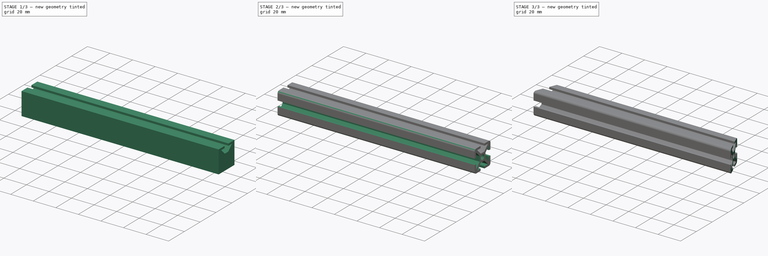
[diagram: build sequence overview — one tinted view per stage of 3, left to right]
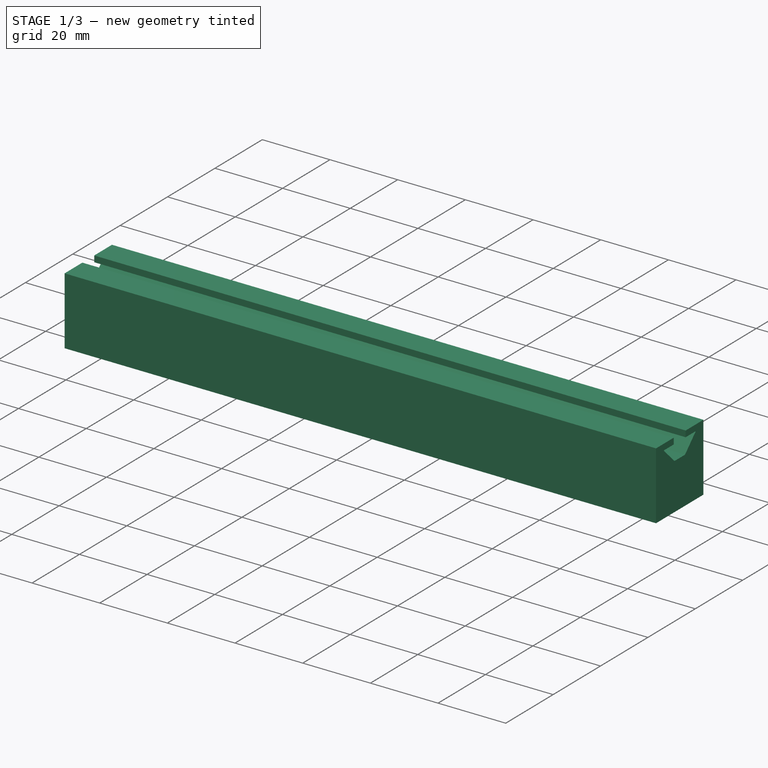
[diagram: stage 1 of 3 — iso view after this stage's code; geometry added in this stage tinted green]
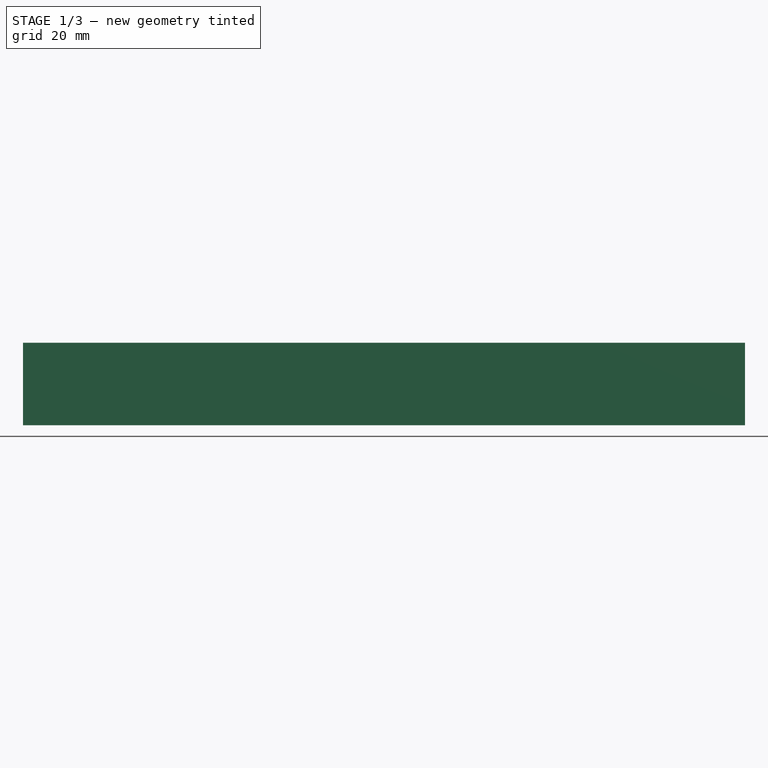
[diagram: stage 1 of 3 — front view after this stage's code; geometry added in this stage tinted green]
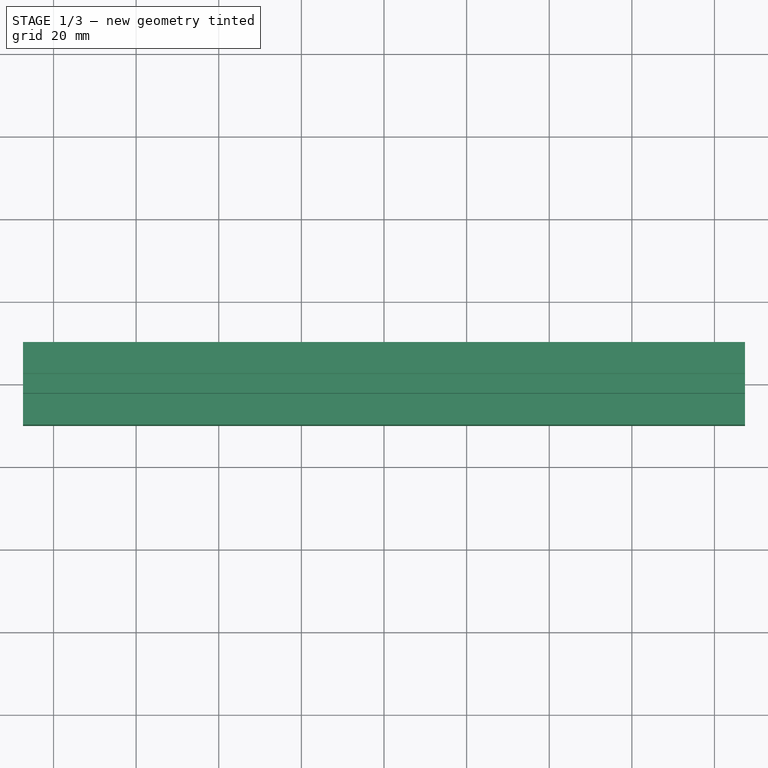
[diagram: stage 1 of 3 — top view after this stage's code; geometry added in this stage tinted green]
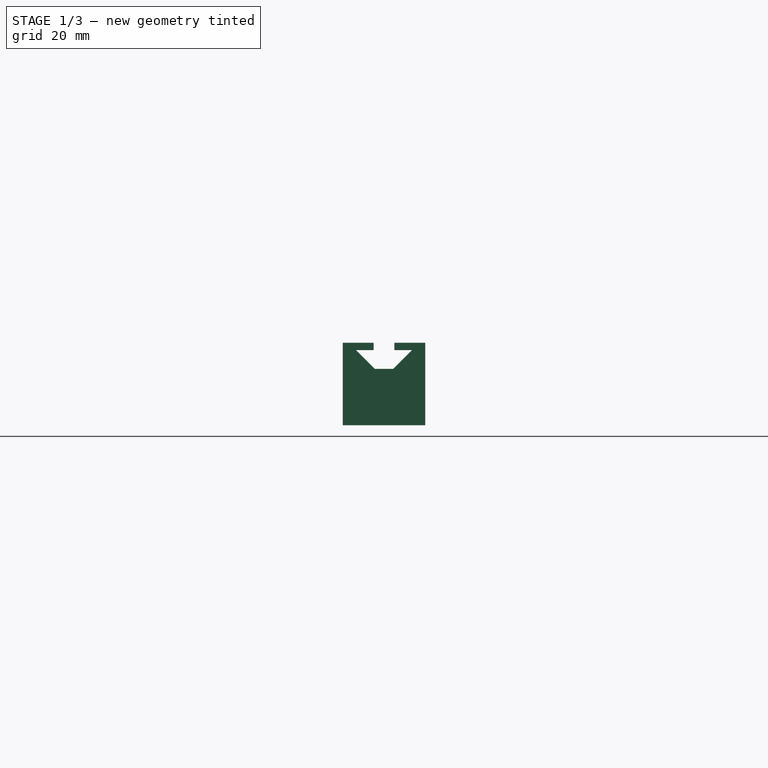
[diagram: stage 1 of 3 — right view after this stage's code; geometry added in this stage tinted green]
FCSTD DOCUMENT  (FreeCAD 1.0R39109 (Git))
Label: OCT-FREXT-LA
License: All rights reserved
LicenseURL: https://en.wikipedia.org/wiki/All_rights_reserved
objects: Sketcher::SketchObject×4, PartDesign::Plane×4, PartDesign::Pocket×3, PartDesign::Line×3, PartDesign::Point×3, PartDesign::Fillet×2, App::Link×1, PartDesign::Pad×1, PartDesign::PolarPattern×1, PartDesign::Body×1
note: 39 computed .brp shape members not serialized (recipe doc carries the construction recipe); baked Part::Feature solids carry a one-line shape summary decoded from their .brp
EXTERNAL_REF file=../master.FCStd obj=Spreadsheet

FEATURE [App::Link] Link  label="dims"
  LinkedObject = -> <external ../master.FCStd>#Spreadsheet
FEATURE [Sketcher::SketchObject] Sketch
  ArcFitTolerance = 1e-06
  AttachmentSupport = -> [YZ_Plane]
  FullyConstrained = true
  MakeInternals = false
  MapMode = 5
  Placement = pos=(0,0,0) rot=(0.57735,0.57735,0.57735;2.0944rad)
  sketch-geometry (5):
    g0: LineSegment StartX=10 StartY=-10 StartZ=0 EndX=10 EndY=10 EndZ=0
    g1: LineSegment StartX=10 StartY=10 StartZ=0 EndX=-10 EndY=10 EndZ=0
    g2: LineSegment StartX=-10 StartY=10 StartZ=0 EndX=-10 EndY=-10 EndZ=0
    g3: LineSegment StartX=-10 StartY=-10 StartZ=0 EndX=10 EndY=-10 EndZ=0
    g4: GeomPoint [constr] X=1e-16 Y=0 Z=0
  constraints (12):
    c: Coincident(g0,g1)
    c: Coincident(g1,g2)
    c: Coincident(g2,g3)
    c: Coincident(g3,g0)
    c: Vertical(g0)
    c: Vertical(g2)
    c: Horizontal(g1)
    c: Horizontal(g3)
    c: Symmetric(g2,g0,g4)
    c: Coincident(g4,g-1)
    c: Equal(g1,g2)
    c: DistanceX(g1,g1) = 20
FEATURE [PartDesign::Pad] Pad
  Direction = (1,0,0)
  Length = 174.798
  Length2 = 10
  Midplane = true
  Placement = pos=(0,0,0) rot=(1,1,1;2.0944rad)
  Profile = -> Sketch
  ReferenceAxis = -> Sketch [N_Axis]
  Refine = true
  Suppressed = false
  Type = 0
  expr: Length = <<dims>>.opFurnace
FEATURE [Sketcher::SketchObject] Sketch001
  ArcFitTolerance = 1e-06
  AttachmentSupport = -> [YZ_Plane]
  FullyConstrained = true
  MakeInternals = false
  MapMode = 5
  Placement = pos=(0,0,0) rot=(0.57735,0.57735,0.57735;2.0944rad)
  sketch-geometry (14):
    g0: LineSegment [constr] StartX=10 StartY=-10 StartZ=0 EndX=10 EndY=10 EndZ=0
    g1: LineSegment [constr] StartX=10 StartY=10 StartZ=0 EndX=-10 EndY=10 EndZ=0
    g2: LineSegment [constr] StartX=-10 StartY=10 StartZ=0 EndX=-10 EndY=-10 EndZ=0
    g3: LineSegment [constr] StartX=-10 StartY=-10 StartZ=0 EndX=10 EndY=-10 EndZ=0
    g4: GeomPoint [constr] X=0 Y=0 Z=0
    g5: LineSegment StartX=-2.5 StartY=10 StartZ=0 EndX=2.5 EndY=10 EndZ=0
    g6: LineSegment StartX=2.5 StartY=10 StartZ=0 EndX=2.5 EndY=8.2 EndZ=0
    g7: LineSegment StartX=2.5 StartY=8.2 StartZ=0 EndX=6.78579 EndY=8.2 EndZ=0
    g8: LineSegment StartX=6.78579 StartY=8.2 StartZ=0 EndX=2.23579 EndY=3.65 EndZ=0
    g9: LineSegment StartX=2.23579 StartY=3.65 StartZ=0 EndX=-2.23579 EndY=3.65 EndZ=0
    g10: LineSegment StartX=-2.23579 StartY=3.65 StartZ=0 EndX=-6.78579 EndY=8.2 EndZ=0
    g11: LineSegment StartX=-6.78579 StartY=8.2 StartZ=0 EndX=-2.5 EndY=8.2 EndZ=0
    g12: LineSegment StartX=-2.5 StartY=8.2 StartZ=0 EndX=-2.5 EndY=10 EndZ=0
    g13: LineSegment [constr] StartX=0 StartY=0 StartZ=0 EndX=10 EndY=10 EndZ=0
  constraints (37):
    c: Coincident(g0,g1)
    c: Coincident(g1,g2)
    c: Coincident(g2,g3)
    c: Coincident(g3,g0)
    c: Vertical(g0)
    c: Vertical(g2)
    c: Horizontal(g3)
    c: Symmetric(g2,g0,g4)
    c: Coincident(g4,g-1)
    c: Equal(g1,g2)
    c: DistanceX(g1,g1) = 20
    c: Coincident(g5,g6)
    c: Vertical(g6)
    c: Coincident(g6,g7)
    c: Horizontal(g7)
    c: Coincident(g7,g8)
    c: Coincident(g8,g9)
    c: Coincident(g9,g10)
    c: Coincident(g10,g11)
    c: Coincident(g11,g12)
    c: Coincident(g12,g5)
    c: PointOnObject(g5,g1)
    c: Symmetric(g5,g5,g-2)
    c: Vertical(g12)
    c: Horizontal(g11)
    c: Equal(g12,g6)
    c: Equal(g11,g7)
    c: Equal(g8,g10)
    c: Horizontal(g9)
    c: DistanceX(g5,g5) = 5
    c: DistanceY(g9,g5) = 6.35
    c: Angle(g10,g11) = 0.785398
    c: Coincident(g13,g4)
    c: Coincident(g13,g0)
    c: Distance(g7,g13) = 1
    c: Horizontal(g1)
    c: DistanceY(g12,g12) = 1.8
FEATURE [PartDesign::Pocket] Pocket
  BaseFeature = -> Pad
  Direction = (-1,0,0)
  Length = 5
  Length2 = 5
  Midplane = true
  Placement = pos=(0,0,0) rot=(1,1,1;2.0944rad)
  Profile = -> Sketch001
  ReferenceAxis = -> Sketch001 [N_Axis]
  Refine = true
  Suppressed = false
  Type = 1
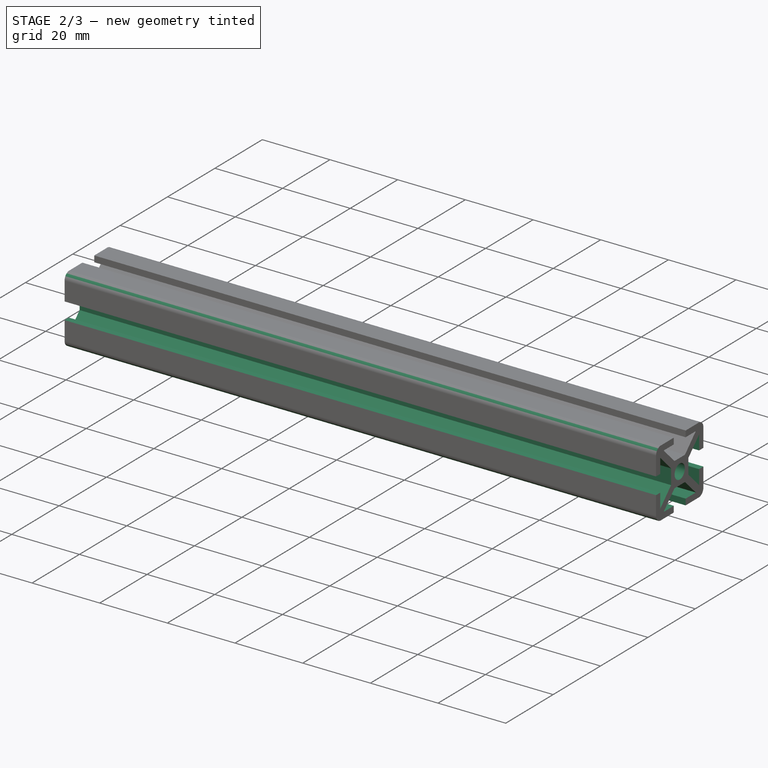
[diagram: stage 2 of 3 — iso view after this stage's code; geometry added in this stage tinted green]
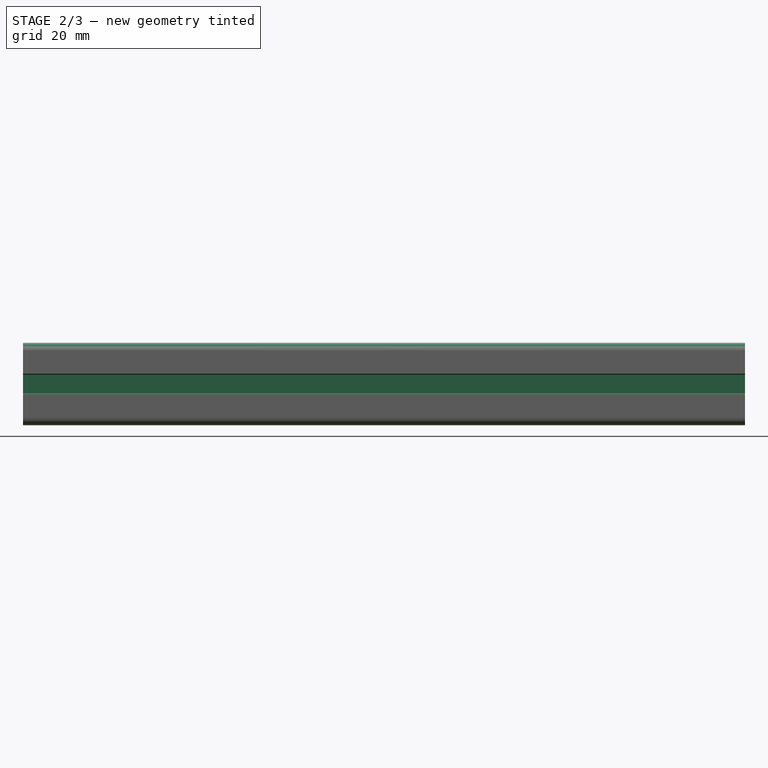
[diagram: stage 2 of 3 — front view after this stage's code; geometry added in this stage tinted green]
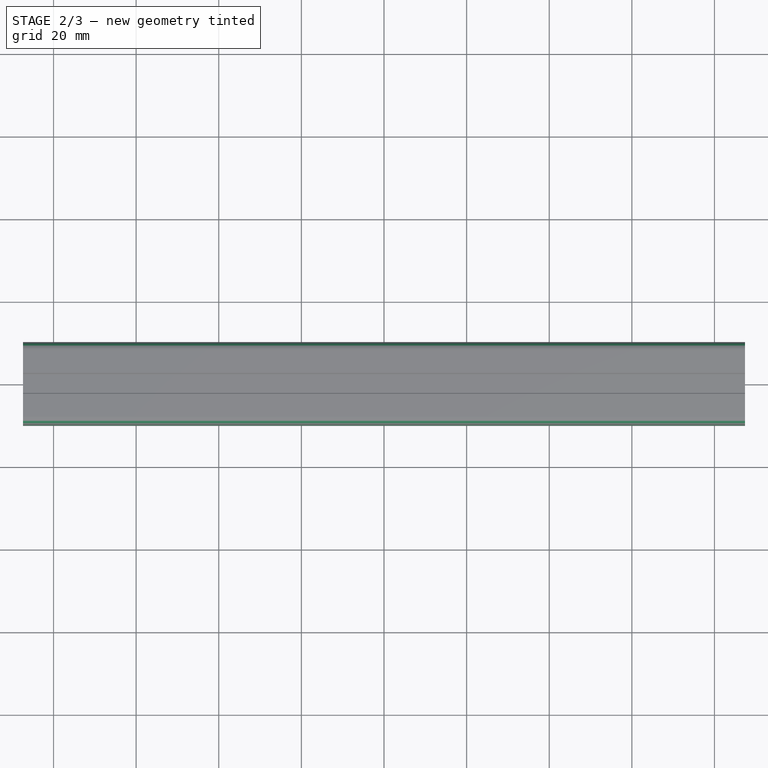
[diagram: stage 2 of 3 — top view after this stage's code; geometry added in this stage tinted green]
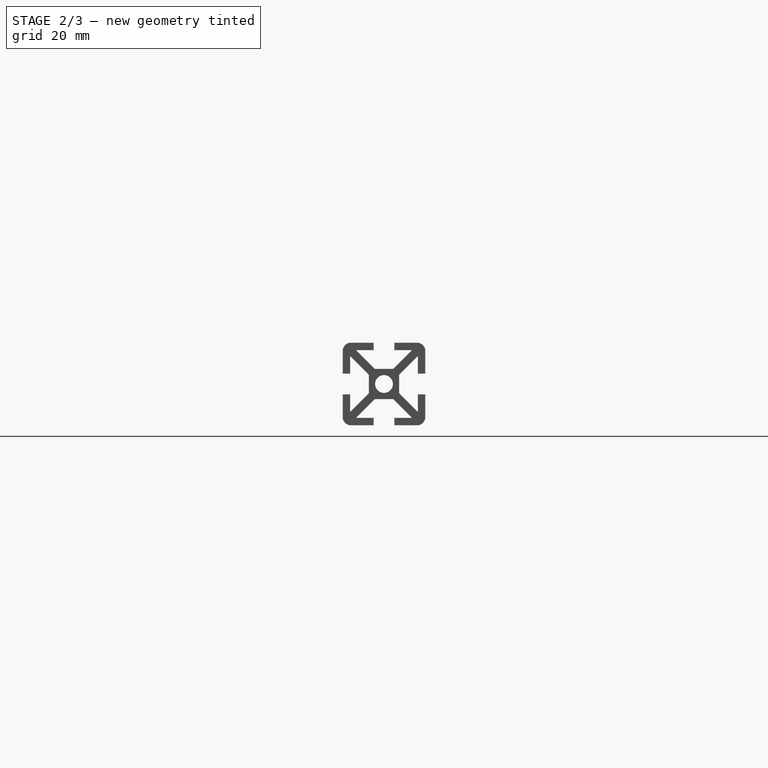
[diagram: stage 2 of 3 — right view after this stage's code; geometry added in this stage tinted green]
FEATURE [PartDesign::PolarPattern] PolarPattern
  Angle = 360
  Axis = -> X_Axis
  BaseFeature = -> Pocket
  Mode = 0
  Occurrences = 4
  Offset = 120
  Originals = -> [Pocket]
  Placement = pos=(0,0,0) rot=(1,1,1;2.0944rad)
  Refine = true
  Suppressed = false
  TransformMode = 0
FEATURE [Sketcher::SketchObject] Sketch002
  ArcFitTolerance = 1e-06
  AttachmentSupport = -> [YZ_Plane]
  FullyConstrained = true
  MakeInternals = false
  MapMode = 5
  Placement = pos=(0,0,0) rot=(0.57735,0.57735,0.57735;2.0944rad)
  sketch-geometry (1):
    g0: Circle CenterX=0 CenterY=0 CenterZ=0 NormalX=0 NormalY=0 NormalZ=1 AngleXU=0 Radius=2.15
  constraints (2):
    c: Coincident(g0,g-1)
    c: Diameter(g0) = 4.3
FEATURE [PartDesign::Pocket] Pocket001
  BaseFeature = -> PolarPattern
  Direction = (-1,0,0)
  Length = 5
  Length2 = 5
  Midplane = true
  Placement = pos=(0,0,0) rot=(1,1,1;2.0944rad)
  Profile = -> Sketch002
  ReferenceAxis = -> Sketch002 [N_Axis]
  Refine = true
  Suppressed = false
  Type = 1
FEATURE [PartDesign::Fillet] Fillet  label="outer fillet"
  Base = -> Pocket001 [Edge109,Edge4,Edge79,Edge95]
  BaseFeature = -> Pocket001
  Placement = pos=(0,0,0) rot=(1,1,1;2.0944rad)
  Radius = 2
  Refine = true
  SupportTransform = false
  Suppressed = false
  UseAllEdges = false
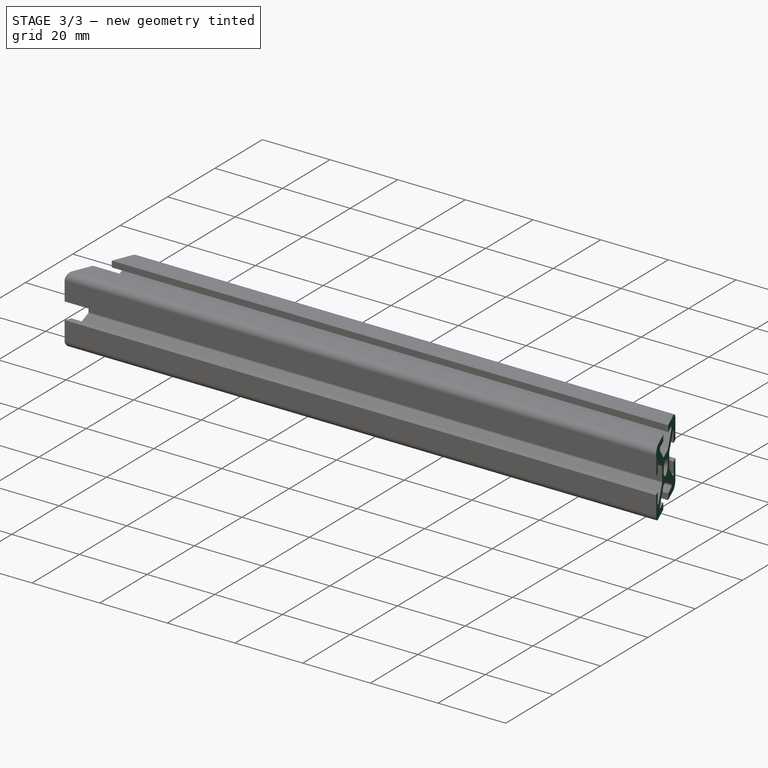
[diagram: stage 3 of 3 — iso view after this stage's code; geometry added in this stage tinted green]
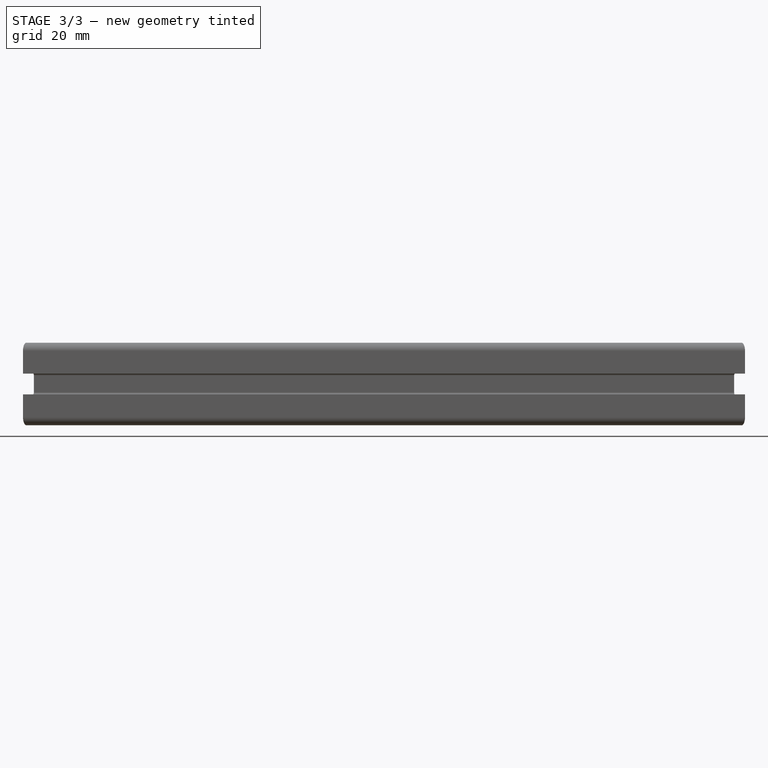
[diagram: stage 3 of 3 — front view after this stage's code; geometry added in this stage tinted green]
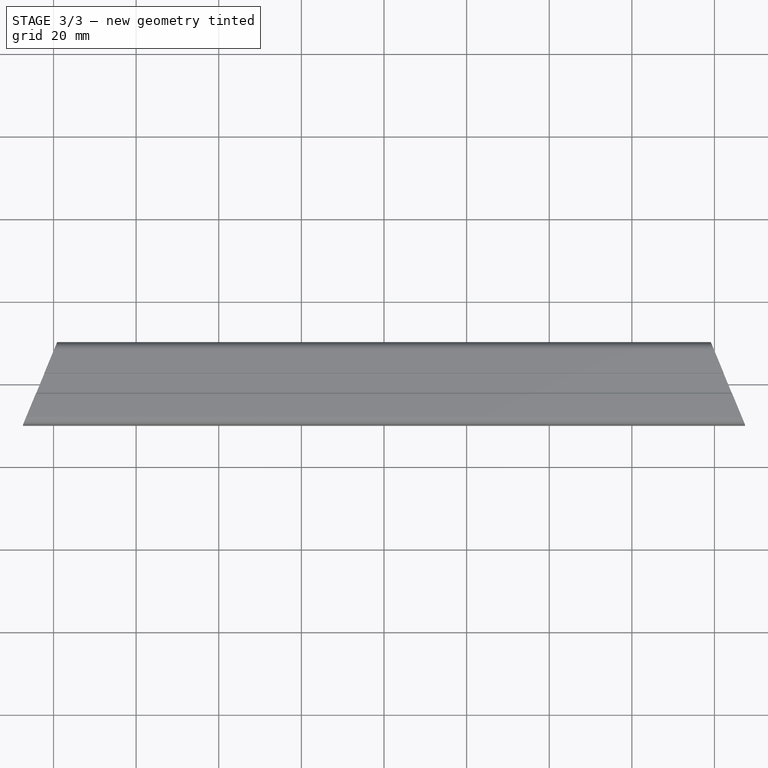
[diagram: stage 3 of 3 — top view after this stage's code; geometry added in this stage tinted green]
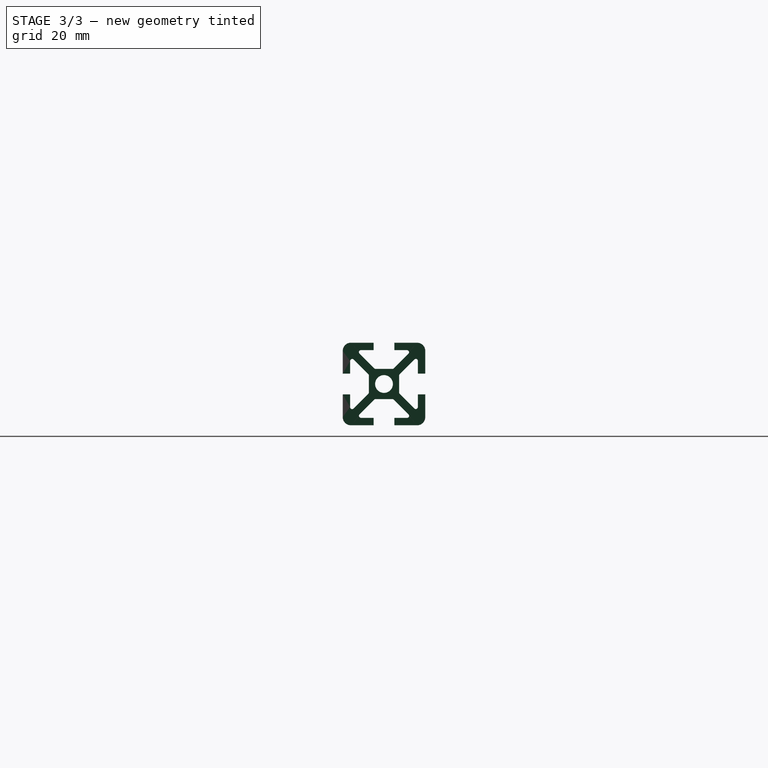
[diagram: stage 3 of 3 — right view after this stage's code; geometry added in this stage tinted green]
FEATURE [PartDesign::Fillet] Fillet001  label="channel fillets"
  Base = -> Fillet [Edge94,Edge96,Edge98,Edge92,Edge95,Edge97,Edge99,Edge101,Edge111,Edge113,Edge115,Edge117,Edge112,Edge110,Edge109,Edge114]
  BaseFeature = -> Fillet
  Placement = pos=(0,0,0) rot=(1,1,1;2.0944rad)
  Radius = 0.5
  Refine = true
  SupportTransform = false
  Suppressed = false
  UseAllEdges = false
FEATURE [Sketcher::SketchObject] Sketch003
  ArcFitTolerance = 1e-06
  AttachmentSupport = -> [XY_Plane]
  FullyConstrained = true
  MakeInternals = false
  MapMode = 5
  expr: Constraints[16] = <<dims>>.opFurnace
  sketch-geometry (6):
    g0: LineSegment StartX=87.3991 StartY=-10 StartZ=0 EndX=87.3991 EndY=10 EndZ=0
    g1: LineSegment StartX=87.3991 StartY=10 StartZ=0 EndX=79.1148 EndY=10 EndZ=0
    g2: LineSegment StartX=79.1148 StartY=10 StartZ=0 EndX=87.3991 EndY=-10 EndZ=0
    g3: LineSegment StartX=-87.3991 StartY=-10 StartZ=0 EndX=-87.3991 EndY=10 EndZ=0
    g4: LineSegment StartX=-87.3991 StartY=10 StartZ=0 EndX=-79.1148 EndY=10 EndZ=0
    g5: LineSegment StartX=-79.1148 StartY=10 StartZ=0 EndX=-87.3991 EndY=-10 EndZ=0
  constraints (17):
    c: Vertical(g0)
    c: Coincident(g0,g1)
    c: Horizontal(g1)
    c: Coincident(g1,g2)
    c: Coincident(g2,g0)
    c: Vertical(g3)
    c: Coincident(g3,g4)
    c: Horizontal(g4)
    c: Coincident(g4,g5)
    c: Coincident(g5,g3)
    c: Equal(g4,g1)
    c: Equal(g3,g0)
    c: Symmetric(g3,g0,g-2)
    c: DistanceY(g3,g-1) = 10
    c: DistanceY(g3,g3) = 20
    c: Angle(g5,g3) = 0.392699
    c: DistanceX(g3,g0) = 174.798
FEATURE [PartDesign::Pocket] Pocket002
  BaseFeature = -> Fillet001
  Direction = (0,0,-1)
  Length = 5
  Length2 = 5
  Midplane = true
  Placement = pos=(0,0,0) rot=(1,1,1;2.0944rad)
  Profile = -> Sketch003
  ReferenceAxis = -> Sketch003 [N_Axis]
  Refine = true
  Suppressed = false
  Type = 1
FEATURE [PartDesign::Plane] DatumPlane
  AttachmentSupport = -> [XZ_Plane]
  Length = 60
  MapMode = 5
  Placement = pos=(0,0,0) rot=(1,0,0;1.5708rad)
  ResizeMode = 0
  Width = 60
FEATURE [PartDesign::Plane] DatumPlane001  label="base panel axis"
  AttachmentOffset = pos=(0,0,70) rot=(0,0,1;0rad)
  AttachmentSupport = -> [YZ_Plane]
  Length = 60
  MapMode = 5
  Placement = pos=(70,0,0) rot=(0.57735,0.57735,0.57735;2.0944rad)
  ResizeMode = 0
  Width = 60
FEATURE [PartDesign::Line] DatumLine001  label="base hole centre right"
  AttacherType = Attacher::AttachEngineLine
  AttachmentSupport = -> [DatumPlane,DatumPlane001]
  Length = 20
  MapMode = 30
  Placement = pos=(70,0,0) rot=(0,0,1;0rad)
  ResizeMode = 0
FEATURE [PartDesign::Point] DatumPoint  label="base hole point right"
  AttacherType = Attacher::AttachEnginePoint
  AttachmentSupport = -> [DatumLine001,Pocket002]
  MapMode = 40
  Placement = pos=(70,0,-10) rot=(0,0,1;0rad)
FEATURE [PartDesign::Plane] DatumPlane002  label="v brace plane"
  AttachmentOffset = pos=(15,0,0) rot=(0,1,0;1.5708rad)
  AttachmentSupport = -> [Pocket002]
  Length = 60
  MapMode = 7
  Placement = pos=(-64.1148,10,8) rot=(0,1,0;1.5708rad)
  ResizeMode = 0
  Width = 60
FEATURE [PartDesign::Line] DatumLine  label="v brace axis"
  AttacherType = Attacher::AttachEngineLine
  AttachmentSupport = -> [DatumPlane002,XY_Plane]
  Length = 20
  MapMode = 30
  Placement = pos=(-64.1148,10,0) rot=(1,0,0;1.5708rad)
  ResizeMode = 0
FEATURE [PartDesign::Point] DatumPoint001  label="v brace point"
  AttacherType = Attacher::AttachEnginePoint
  AttachmentSupport = -> [DatumLine,Pocket002]
  MapMode = 40
  Placement = pos=(-64.1148,10,0) rot=(0,0,1;0rad)
FEATURE [PartDesign::Plane] DatumPlane003  label="lower panel plane"
  AttachmentOffset = pos=(0,0,75) rot=(0,0,1;0rad)
  AttachmentSupport = -> [YZ_Plane]
  Length = 60
  MapMode = 5
  Placement = pos=(75,0,0) rot=(0.57735,0.57735,0.57735;2.0944rad)
  ResizeMode = 0
  Width = 60
FEATURE [PartDesign::Line] DatumLine002  label="lower panel line"
  AttacherType = Attacher::AttachEngineLine
  AttachmentSupport = -> [DatumPlane003,XY_Plane]
  Length = 20
  MapMode = 30
  Placement = pos=(75,0,0) rot=(1,0,0;1.5708rad)
  ResizeMode = 0
FEATURE [PartDesign::Point] DatumPoint002  label="lower panel point"
  AttacherType = Attacher::AttachEnginePoint
  AttachmentOffset = pos=(0,-10,0) rot=(0,0,1;0rad)
  AttachmentSupport = -> [DatumLine002,XZ_Plane]
  MapMode = 40
  Placement = pos=(75,-10,0) rot=(0,0,1;0rad)
FEATURE [PartDesign::Body] Body  label="extrusion"
  AllowCompound = false
  Group = -> [Sketch,Pad,Sketch001,Pocket,PolarPattern,Sketch002,Pocket001,Fillet,Fillet001,Sketch003,Pocket002,DatumPlane,DatumPlane001,DatumLine001,DatumPoint,DatumPlane002,DatumLine,DatumPoint001,DatumPlane003,DatumLine002,DatumPoint002]
  Origin = -> Origin
  Tip = -> Pocket002
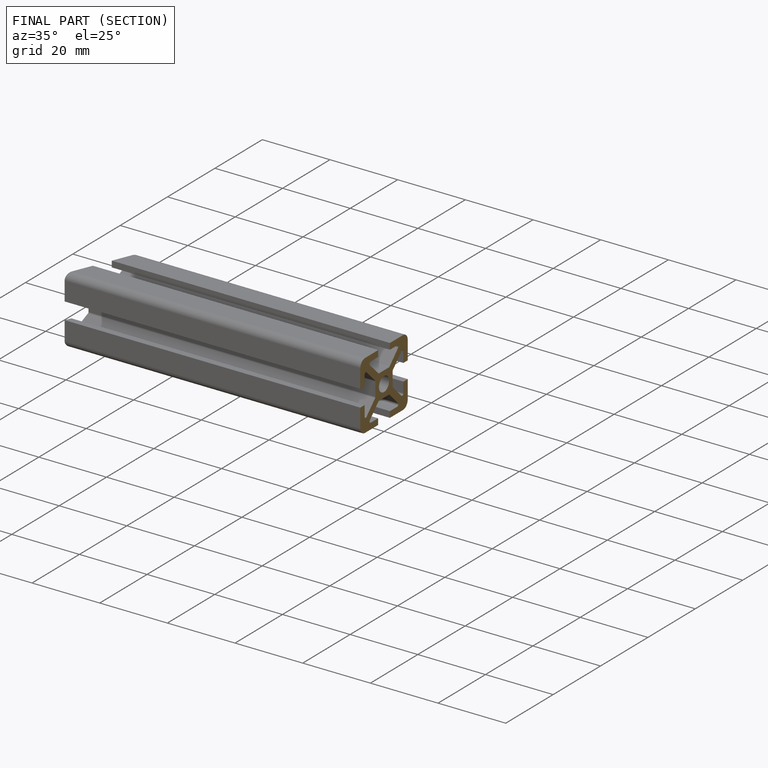
[diagram: finished part — half-section view (interior)]
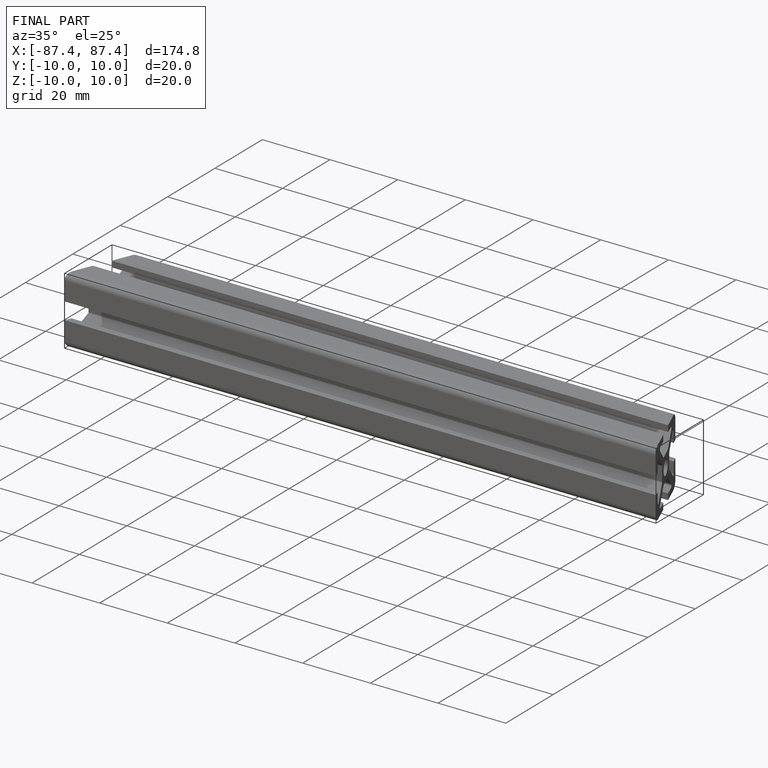
[diagram: finished part — iso view with bounding-box wireframe]
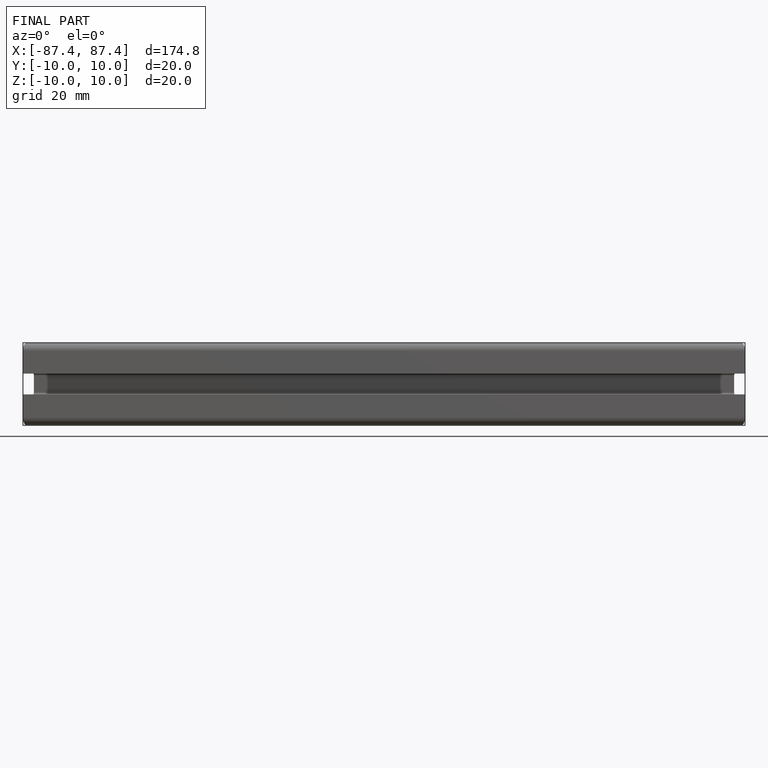
[diagram: finished part — front view with bounding-box wireframe]
